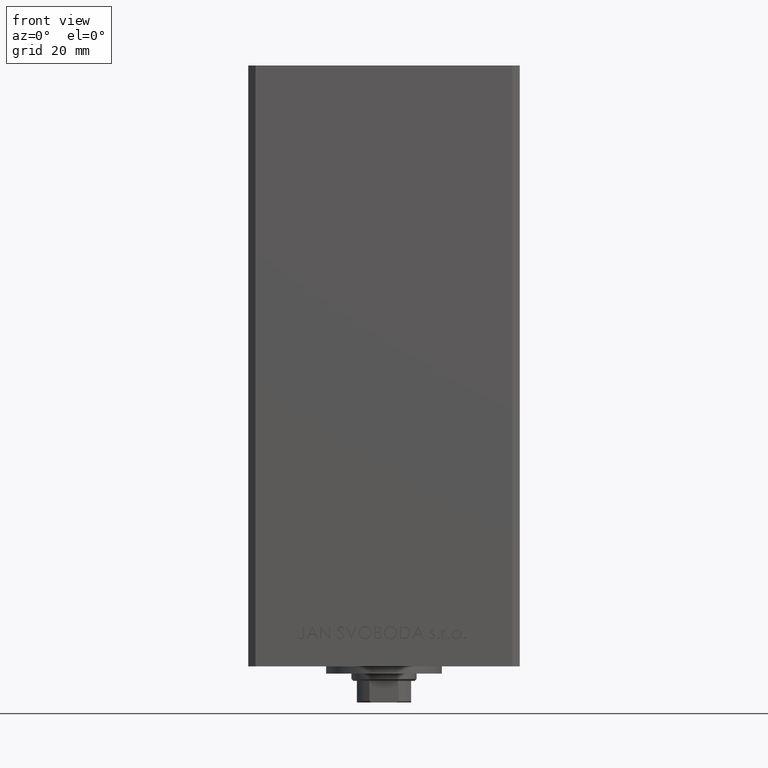
[diagram: clean part render]
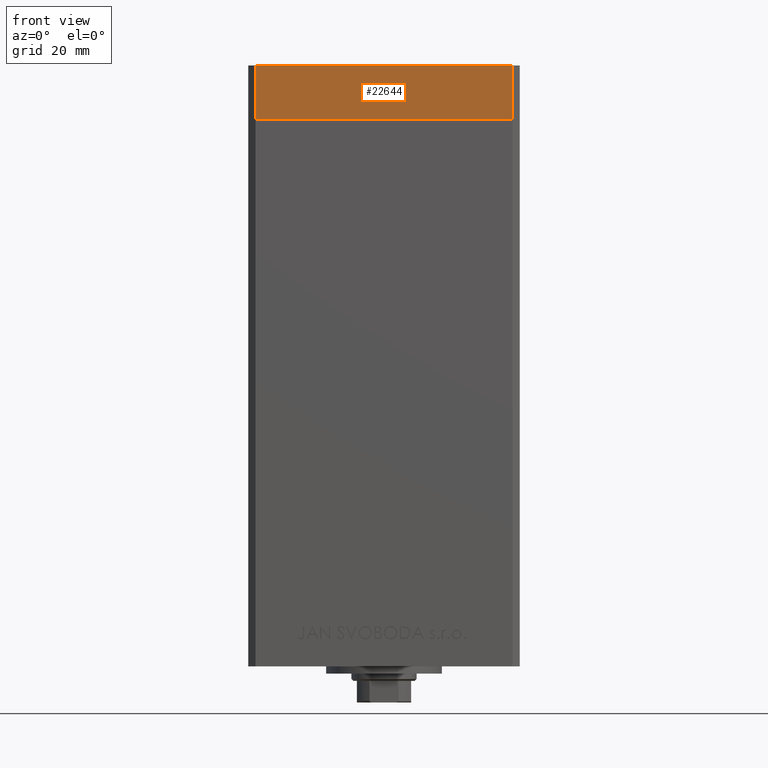
[diagram: same view with one face highlighted and labeled with its STEP entity id]
A machine part, front view. The second image highlights one B-rep face of the part: STEP entity #22644.
In plain terms, the highlighted planar face has unit normal (0, -1, 0).
Its self-contained STEP definition (entity closure, byte-faithful):
#683 = CARTESIAN_POINT ( 'NONE',  ( -35.49999999999998579, -32.50000000000001421, 0.000000000000000000 ) ) ;
#1187 = EDGE_CURVE ( 'NONE', #34373, #19273, #10269, .T. ) ;
#2794 = DIRECTION ( 'NONE',  ( 0.000000000000000000, 0.000000000000000000, 1.000000000000000000 ) ) ;
#5027 = EDGE_CURVE ( 'NONE', #18267, #34373, #28320, .T. ) ;
#5597 = CARTESIAN_POINT ( 'NONE',  ( -35.49999999999998579, -32.50000000000001421, -15.00000000000000000 ) ) ;
#10269 = LINE ( 'NONE', #44416, #43988 ) ;
#10913 = CARTESIAN_POINT ( 'NONE',  ( -35.49999999999998579, -32.50000000000001421, -15.00000000000000000 ) ) ;
#11903 = LINE ( 'NONE', #683, #26503 ) ;
#12926 = FACE_OUTER_BOUND ( 'NONE', #13284, .T. ) ;
#13284 = EDGE_LOOP ( 'NONE', ( #25815, #20788, #25986, #38531 ) ) ;
#14501 = AXIS2_PLACEMENT_3D ( 'NONE', #18195, #37404, #15183 ) ;
#15183 = DIRECTION ( 'NONE',  ( 1.000000000000000000, 9.773090005503140331E-17, 0.000000000000000000 ) ) ;
#18195 = CARTESIAN_POINT ( 'NONE',  ( -35.49999999999998579, -32.50000000000001421, -15.00000000000000000 ) ) ;
#18267 = VERTEX_POINT ( 'NONE', #10913 ) ;
#18570 = VECTOR ( 'NONE', #24499, 1000.000000000000000 ) ;
#19273 = VERTEX_POINT ( 'NONE', #26826 ) ;
#20788 = ORIENTED_EDGE ( 'NONE', *, *, #28557, .F. ) ;
#22644 = ADVANCED_FACE ( 'NONE', ( #12926 ), #36920, .T. ) ;
#24499 = DIRECTION ( 'NONE',  ( 0.000000000000000000, 0.000000000000000000, 1.000000000000000000 ) ) ;
#25815 = ORIENTED_EDGE ( 'NONE', *, *, #26836, .F. ) ;
#25986 = ORIENTED_EDGE ( 'NONE', *, *, #5027, .T. ) ;
#26503 = VECTOR ( 'NONE', #42802, 1000.000000000000000 ) ;
#26826 = CARTESIAN_POINT ( 'NONE',  ( 35.50000000000000711, -32.50000000000000711, 0.000000000000000000 ) ) ;
#26836 = EDGE_CURVE ( 'NONE', #44441, #19273, #11903, .T. ) ;
#28320 = LINE ( 'NONE', #5597, #30627 ) ;
#28557 = EDGE_CURVE ( 'NONE', #18267, #44441, #35973, .T. ) ;
#30627 = VECTOR ( 'NONE', #36042, 1000.000000000000000 ) ;
#31110 = CARTESIAN_POINT ( 'NONE',  ( 35.50000000000000711, -32.50000000000000711, -15.00000000000000000 ) ) ;
#34373 = VERTEX_POINT ( 'NONE', #31110 ) ;
#35973 = LINE ( 'NONE', #47160, #18570 ) ;
#36042 = DIRECTION ( 'NONE',  ( 1.000000000000000000, 9.773090005503140331E-17, 0.000000000000000000 ) ) ;
#36920 = PLANE ( 'NONE',  #14501 ) ;
#37404 = DIRECTION ( 'NONE',  ( 9.773090005503140331E-17, -1.000000000000000000, 0.000000000000000000 ) ) ;
#38531 = ORIENTED_EDGE ( 'NONE', *, *, #1187, .T. ) ;
#40995 = CARTESIAN_POINT ( 'NONE',  ( -35.49999999999998579, -32.50000000000001421, 0.000000000000000000 ) ) ;
#42802 = DIRECTION ( 'NONE',  ( 1.000000000000000000, 9.773090005503140331E-17, 0.000000000000000000 ) ) ;
#43988 = VECTOR ( 'NONE', #2794, 1000.000000000000000 ) ;
#44416 = CARTESIAN_POINT ( 'NONE',  ( 35.50000000000000711, -32.50000000000000711, -15.00000000000000000 ) ) ;
#44441 = VERTEX_POINT ( 'NONE', #40995 ) ;
#47160 = CARTESIAN_POINT ( 'NONE',  ( -35.49999999999998579, -32.50000000000001421, -15.00000000000000000 ) ) ;